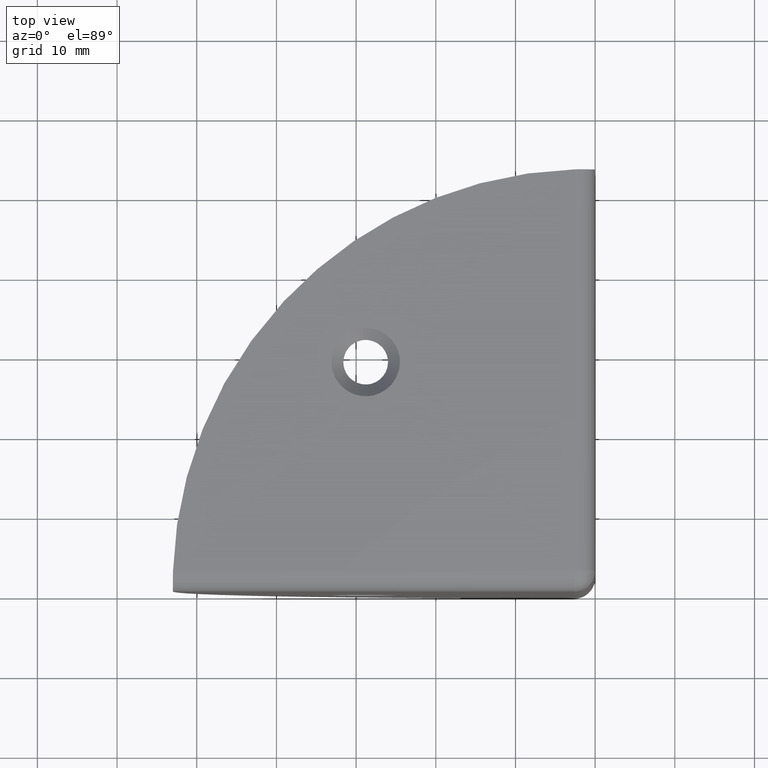
[diagram: clean part render]
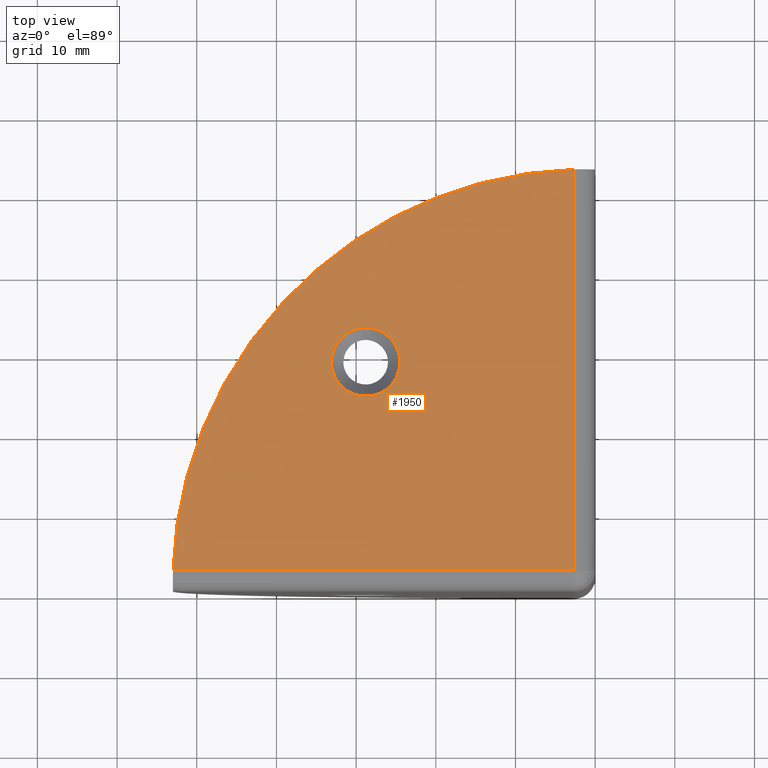
[diagram: same view with one face highlighted and labeled with its STEP entity id]
A machine part, top view. The second image highlights one B-rep face of the part: STEP entity #1950.
In plain terms, the highlighted face is a freeform B-spline surface patch.
Its self-contained STEP definition (entity closure, byte-faithful):
#264=CARTESIAN_POINT('',(-29.137374111665260,33.086744535054322,53.000000000004647));
#265=VERTEX_POINT('',#264);
#271=CARTESIAN_POINT('',(-33.099999999999987,28.800000000000001,53.0));
#272=VERTEX_POINT('',#271);
#273=CARTESIAN_POINT('',(-33.099999999999987,28.800000000000001,53.0));
#274=CARTESIAN_POINT('',(-33.099999999999987,32.774879114064866,52.999999999999993));
#275=CARTESIAN_POINT('',(-29.137374111665263,33.086744535054329,53.000000000004654));
#283=(BOUNDED_CURVE()B_SPLINE_CURVE(2,(#273,#274,#275),.UNSPECIFIED.,.F.,.U.)B_SPLINE_CURVE_WITH_KNOTS((3,3),(0.0,0.236331300629955),.UNSPECIFIED.)CURVE()GEOMETRIC_REPRESENTATION_ITEM()RATIONAL_B_SPLINE_CURVE((1.0,0.723120658608492,0.969723356165946))REPRESENTATION_ITEM(''));
#284=EDGE_CURVE('',#272,#265,#283,.T.);
#286=CARTESIAN_POINT('',(-28.462625888334738,24.513255464945679,53.000000000004647));
#287=VERTEX_POINT('',#286);
#288=CARTESIAN_POINT('',(-28.462625888334735,24.513255464945686,53.000000000004654));
#289=CARTESIAN_POINT('',(-28.631052539831693,24.499999999999996,52.999999999999993));
#290=CARTESIAN_POINT('',(-28.800000000000001,24.500000000000000,53.0));
#291=CARTESIAN_POINT('',(-33.100000000000001,24.499999999999993,53.000000000000014));
#292=CARTESIAN_POINT('',(-33.099999999999987,28.800000000000001,53.0));
#300=(BOUNDED_CURVE()B_SPLINE_CURVE(2,(#288,#289,#290,#291,#292),.UNSPECIFIED.,.F.,.U.)B_SPLINE_CURVE_WITH_KNOTS((3,2,3),(0.736331300629955,0.750000000000000,1.0),.UNSPECIFIED.)CURVE()GEOMETRIC_REPRESENTATION_ITEM()RATIONAL_B_SPLINE_CURVE((0.969723356165946,0.983986122578056,1.0,0.707106781186547,1.0))REPRESENTATION_ITEM(''));
#301=EDGE_CURVE('',#287,#272,#300,.T.);
#338=CARTESIAN_POINT('',(-24.500000000000000,28.800000000000001,53.0));
#339=VERTEX_POINT('',#338);
#340=CARTESIAN_POINT('',(-24.500000000000000,28.800000000000001,53.0));
#341=CARTESIAN_POINT('',(-24.499999999999996,24.825120885935103,53.000000000000007));
#342=CARTESIAN_POINT('',(-28.462625888334738,24.513255464945686,53.000000000004654));
#350=(BOUNDED_CURVE()B_SPLINE_CURVE(2,(#340,#341,#342),.UNSPECIFIED.,.F.,.U.)B_SPLINE_CURVE_WITH_KNOTS((3,3),(0.500000000000000,0.736331300629955),.UNSPECIFIED.)CURVE()GEOMETRIC_REPRESENTATION_ITEM()RATIONAL_B_SPLINE_CURVE((1.0,0.723120658608491,0.969723356165947))REPRESENTATION_ITEM(''));
#351=EDGE_CURVE('',#339,#287,#350,.T.);
#353=CARTESIAN_POINT('',(-29.137374111665256,33.086744535054322,53.000000000004647));
#354=CARTESIAN_POINT('',(-28.968947460168298,33.099999999999994,53.0));
#355=CARTESIAN_POINT('',(-28.800000000000001,33.099999999999987,53.0));
#356=CARTESIAN_POINT('',(-24.499999999999993,33.100000000000001,53.000000000000014));
#357=CARTESIAN_POINT('',(-24.500000000000000,28.800000000000001,53.0));
#365=(BOUNDED_CURVE()B_SPLINE_CURVE(2,(#353,#354,#355,#356,#357),.UNSPECIFIED.,.F.,.U.)B_SPLINE_CURVE_WITH_KNOTS((3,2,3),(0.236331300629955,0.250000000000000,0.500000000000000),.UNSPECIFIED.)CURVE()GEOMETRIC_REPRESENTATION_ITEM()RATIONAL_B_SPLINE_CURVE((0.969723356165947,0.983986122578056,1.0,0.707106781186547,1.0))REPRESENTATION_ITEM(''));
#366=EDGE_CURVE('',#265,#339,#365,.T.);
#1074=CARTESIAN_POINT('',(-2.600000000000000,52.978906015927301,53.0));
#1075=VERTEX_POINT('',#1074);
#1087=CARTESIAN_POINT('',(-2.600000000000000,2.600000000000045,53.0));
#1088=VERTEX_POINT('',#1087);
#1089=CARTESIAN_POINT('',(-2.600000000000000,2.600000000000045,53.0));
#1090=CARTESIAN_POINT('',(-2.600000000000000,52.978906015927301,53.0));
#1091=QUASI_UNIFORM_CURVE('',1,(#1089,#1090),.UNSPECIFIED.,.F.,.U.);
#1092=EDGE_CURVE('',#1088,#1075,#1091,.T.);
#1232=CARTESIAN_POINT('',(-52.978906015927301,2.600000000000045,53.0));
#1233=VERTEX_POINT('',#1232);
#1234=CARTESIAN_POINT('',(-52.978906015927301,2.600000000000045,53.0));
#1235=CARTESIAN_POINT('',(-2.600000000000000,2.600000000000045,53.0));
#1236=QUASI_UNIFORM_CURVE('',1,(#1234,#1235),.UNSPECIFIED.,.F.,.U.);
#1237=EDGE_CURVE('',#1233,#1088,#1236,.T.);
#1611=CARTESIAN_POINT('',(-2.600000000000000,52.978906015927308,53.0));
#1612=CARTESIAN_POINT('',(-51.477491846258310,51.477491846258346,52.999999999999993));
#1613=CARTESIAN_POINT('',(-52.978906015927308,2.600000000000056,53.0));
#1621=(BOUNDED_CURVE()B_SPLINE_CURVE(2,(#1611,#1612,#1613),.UNSPECIFIED.,.F.,.U.)CURVE()GEOMETRIC_REPRESENTATION_ITEM()QUASI_UNIFORM_CURVE()RATIONAL_B_SPLINE_CURVE((1.0,0.728484006415548,1.0))REPRESENTATION_ITEM(''));
#1622=EDGE_CURVE('',#1075,#1233,#1621,.T.);
#1934=CARTESIAN_POINT('',(-0.083573449216241,0.083573449216289,53.0));
#1935=CARTESIAN_POINT('',(-55.495329864175943,0.083573449216289,53.0));
#1936=CARTESIAN_POINT('',(-0.083573449216241,55.495329864175943,53.0));
#1937=CARTESIAN_POINT('',(-55.495329864175943,55.495329864175943,53.0));
#1938=B_SPLINE_SURFACE_WITH_KNOTS('',1,1,((#1934,#1936),(#1935,#1937)),.UNSPECIFIED.,.F.,.F.,.U.,(2,2),(2,2),(0.0,55.411756414959697),(0.0,55.411756414959648),.UNSPECIFIED.);
#1939=ORIENTED_EDGE('',*,*,#1237,.T.);
#1940=ORIENTED_EDGE('',*,*,#1092,.T.);
#1941=ORIENTED_EDGE('',*,*,#1622,.T.);
#1942=EDGE_LOOP('',(#1939,#1940,#1941));
#1943=FACE_OUTER_BOUND('',#1942,.T.);
#1944=ORIENTED_EDGE('',*,*,#351,.T.);
#1945=ORIENTED_EDGE('',*,*,#301,.T.);
#1946=ORIENTED_EDGE('',*,*,#284,.T.);
#1947=ORIENTED_EDGE('',*,*,#366,.T.);
#1948=EDGE_LOOP('',(#1944,#1945,#1946,#1947));
#1949=FACE_BOUND('',#1948,.T.);
#1950=ADVANCED_FACE('',(#1943,#1949),#1938,.F.);